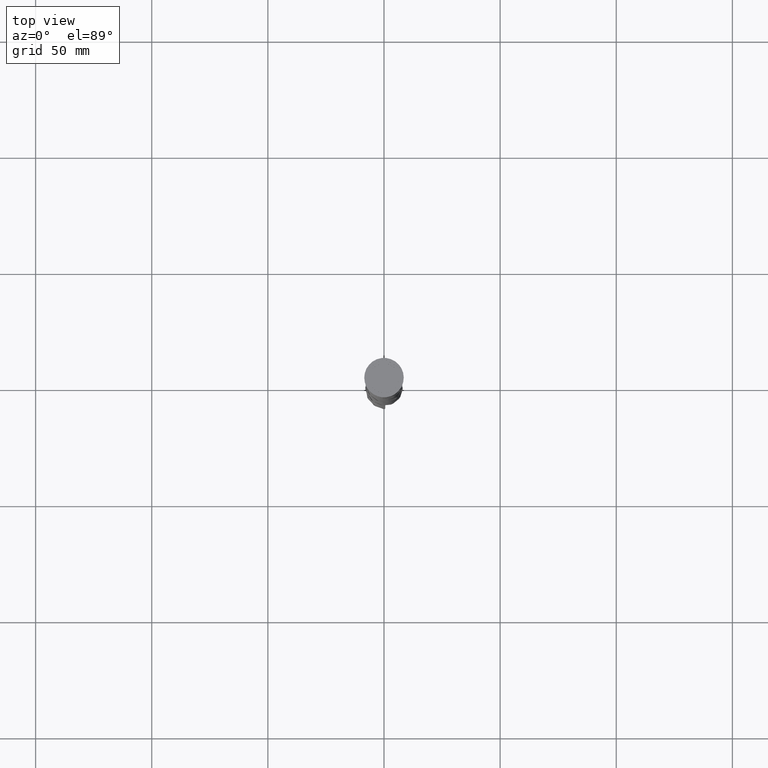
[diagram: clean part render]
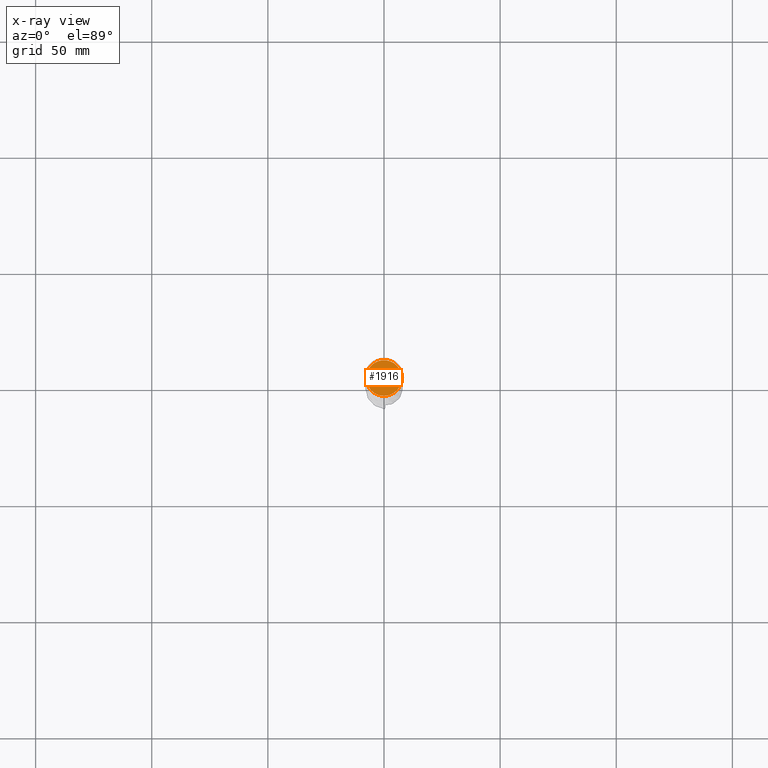
[diagram: x-ray — body ghosted, one internal face saturated and labeled with its STEP entity id]
A machine part, top view, then the same camera in x-ray: the body is ghosted and one INTERNAL B-rep face — a face not visible from any outside direction — is saturated and labeled: STEP entity #1916.
In plain terms, the highlighted planar face has unit normal (0, 0, -1).
Its self-contained STEP definition (entity closure, byte-faithful):
#17 = DIRECTION ( 'NONE',  ( -1.000000000000000000, 0.000000000000000000, -0.000000000000000000 ) ) ;
#361 = AXIS2_PLACEMENT_3D ( 'NONE', #580, #3093, #17 ) ;
#455 = CARTESIAN_POINT ( 'NONE',  ( 0.000000000000000000, 0.000000000000000000, -12.00000000000000000 ) ) ;
#556 = PLANE ( 'NONE',  #361 ) ;
#580 = CARTESIAN_POINT ( 'NONE',  ( 0.000000000000000000, 0.000000000000000000, -12.00000000000000000 ) ) ;
#622 = ORIENTED_EDGE ( 'NONE', *, *, #3273, .T. ) ;
#721 = CARTESIAN_POINT ( 'NONE',  ( 0.000000000000000000, 0.000000000000000000, -12.00000000000000000 ) ) ;
#830 = AXIS2_PLACEMENT_3D ( 'NONE', #721, #3257, #2944 ) ;
#883 = FACE_OUTER_BOUND ( 'NONE', #3367, .T. ) ;
#1046 = CARTESIAN_POINT ( 'NONE',  ( -7.700000000000001954, 0.000000000000000000, -12.00000000000000000 ) ) ;
#1351 = CIRCLE ( 'NONE', #3694, 7.700000000000001954 ) ;
#1748 = DIRECTION ( 'NONE',  ( -0.000000000000000000, -0.000000000000000000, 1.000000000000000000 ) ) ;
#1916 = ADVANCED_FACE ( 'NONE', ( #883 ), #556, .F. ) ;
#2274 = EDGE_CURVE ( 'NONE', #2826, #3356, #3955, .T. ) ;
#2542 = CARTESIAN_POINT ( 'NONE',  ( 7.700000000000001954, 9.613477373306725302E-16, -12.00000000000000000 ) ) ;
#2826 = VERTEX_POINT ( 'NONE', #1046 ) ;
#2944 = DIRECTION ( 'NONE',  ( -1.000000000000000000, 0.000000000000000000, 0.000000000000000000 ) ) ;
#3030 = DIRECTION ( 'NONE',  ( -1.000000000000000000, 0.000000000000000000, 0.000000000000000000 ) ) ;
#3093 = DIRECTION ( 'NONE',  ( 0.000000000000000000, 0.000000000000000000, -1.000000000000000000 ) ) ;
#3257 = DIRECTION ( 'NONE',  ( -0.000000000000000000, -0.000000000000000000, 1.000000000000000000 ) ) ;
#3273 = EDGE_CURVE ( 'NONE', #3356, #2826, #1351, .T. ) ;
#3356 = VERTEX_POINT ( 'NONE', #2542 ) ;
#3367 = EDGE_LOOP ( 'NONE', ( #3379, #622 ) ) ;
#3379 = ORIENTED_EDGE ( 'NONE', *, *, #2274, .T. ) ;
#3694 = AXIS2_PLACEMENT_3D ( 'NONE', #455, #1748, #3030 ) ;
#3955 = CIRCLE ( 'NONE', #830, 7.700000000000001954 ) ;